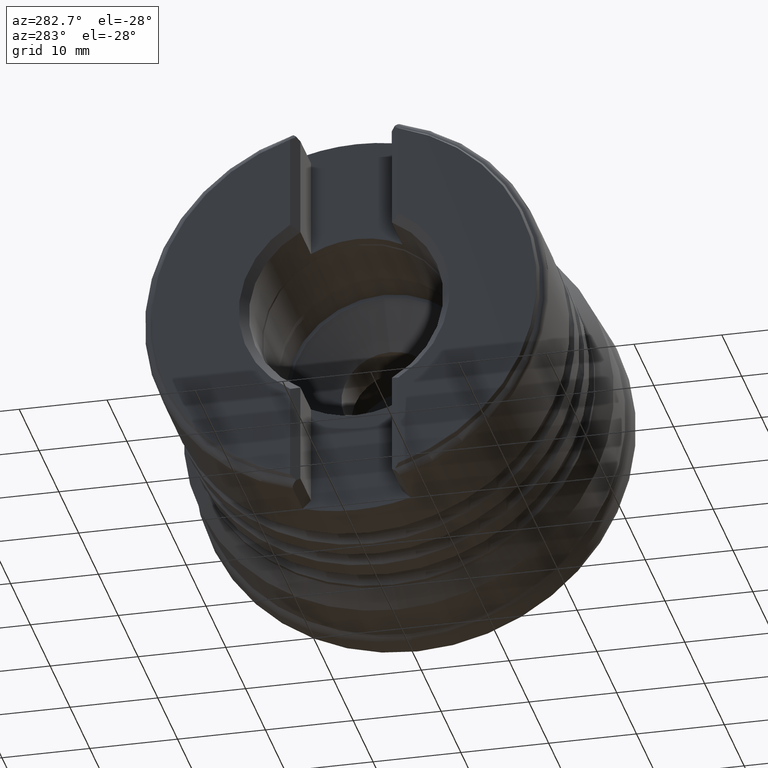
[diagram: clean part render]
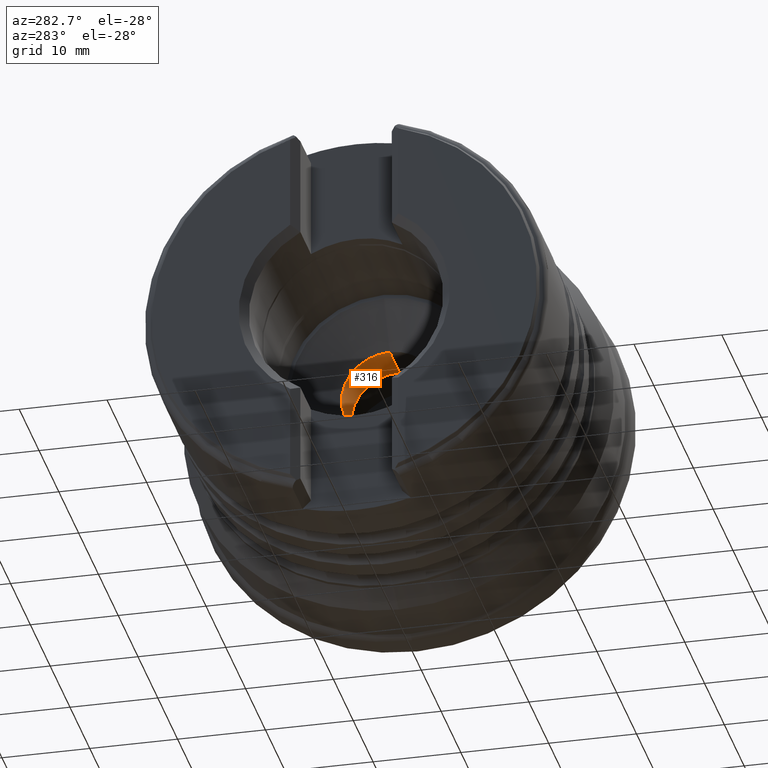
[diagram: same view with one face highlighted and labeled with its STEP entity id]
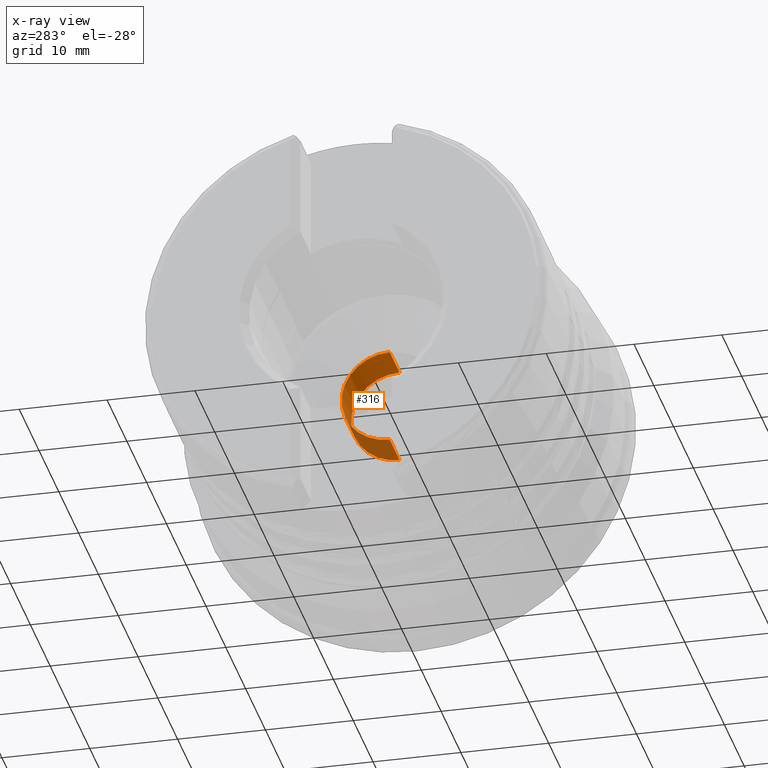
[diagram: x-ray of the same camera — body ghosted, the highlighted face saturated]
A machine part, auxiliary view. The second image highlights one B-rep face of the part: STEP entity #316.
The next image is the same camera in x-ray: the body ghosted, the highlighted face saturated — about 33% of this face is hidden behind the body in this view.
In plain terms, the highlighted cylindrical surface (partial cylindrical patch) has radius 5.5 mm, axis along (1, -0, -0).
Its self-contained STEP definition (entity closure, byte-faithful):
#7 = EDGE_CURVE ( 'NONE', #1958, #1961, #1165, .T. ) ;
#12 = EDGE_CURVE ( 'NONE', #1961, #2547, #1543, .T. ) ;
#57 = AXIS2_PLACEMENT_3D ( 'NONE', #1775, #1858, #1866 ) ;
#59 = EDGE_CURVE ( 'NONE', #1958, #402, #1262, .T. ) ;
#89 = EDGE_CURVE ( 'NONE', #402, #2547, #1605, .T. ) ;
#130 = AXIS2_PLACEMENT_3D ( 'NONE', #2500, #2501, #2455 ) ;
#216 = AXIS2_PLACEMENT_3D ( 'NONE', #907, #767, #432 ) ;
#316 = ADVANCED_FACE ( 'NONE', ( #2141 ), #2108, .F. ) ;
#402 = VERTEX_POINT ( 'NONE', #485 ) ;
#432 = DIRECTION ( 'NONE',  ( 0.0000000000000000000, 0.0000000000000000000, -1.000000000000000000 ) ) ;
#485 = CARTESIAN_POINT ( 'NONE',  ( -11.00000000000000200, 0.0000000000000000000, -5.499999999999998200 ) ) ;
#569 = CARTESIAN_POINT ( 'NONE',  ( -15.94999999999999900, 6.735557395310440100E-016, 5.499999999999998200 ) ) ;
#767 = DIRECTION ( 'NONE',  ( 1.000000000000000000, -0.0000000000000000000, -0.0000000000000000000 ) ) ;
#907 = CARTESIAN_POINT ( 'NONE',  ( 0.0000000000000000000, 0.0000000000000000000, 0.0000000000000000000 ) ) ;
#924 = CARTESIAN_POINT ( 'NONE',  ( -15.94999999999999900, 0.0000000000000000000, -5.499999999999998200 ) ) ;
#1009 = CARTESIAN_POINT ( 'NONE',  ( -11.00000000000000200, 6.735557395310440100E-016, 5.499999999999998200 ) ) ;
#1134 = VECTOR ( 'NONE', #1834, 1000.000000000000000 ) ;
#1165 = CIRCLE ( 'NONE', #57, 5.499999999999998200 ) ;
#1262 = LINE ( 'NONE', #1873, #1392 ) ;
#1392 = VECTOR ( 'NONE', #1857, 1000.000000000000000 ) ;
#1423 = EDGE_LOOP ( 'NONE', ( #1703, #1710, #1760, #1458 ) ) ;
#1458 = ORIENTED_EDGE ( 'NONE', *, *, #89, .T. ) ;
#1543 = LINE ( 'NONE', #1829, #1134 ) ;
#1605 = CIRCLE ( 'NONE', #130, 5.499999999999998200 ) ;
#1703 = ORIENTED_EDGE ( 'NONE', *, *, #12, .F. ) ;
#1710 = ORIENTED_EDGE ( 'NONE', *, *, #7, .F. ) ;
#1760 = ORIENTED_EDGE ( 'NONE', *, *, #59, .T. ) ;
#1775 = CARTESIAN_POINT ( 'NONE',  ( -15.94999999999999900, 0.0000000000000000000, 0.0000000000000000000 ) ) ;
#1829 = CARTESIAN_POINT ( 'NONE',  ( 0.0000000000000000000, 6.735557395310440100E-016, 5.499999999999998200 ) ) ;
#1834 = DIRECTION ( 'NONE',  ( 1.000000000000000000, -0.0000000000000000000, -0.0000000000000000000 ) ) ;
#1857 = DIRECTION ( 'NONE',  ( 1.000000000000000000, -0.0000000000000000000, -0.0000000000000000000 ) ) ;
#1858 = DIRECTION ( 'NONE',  ( 1.000000000000000000, -0.0000000000000000000, -0.0000000000000000000 ) ) ;
#1866 = DIRECTION ( 'NONE',  ( 0.0000000000000000000, 0.0000000000000000000, -1.000000000000000000 ) ) ;
#1873 = CARTESIAN_POINT ( 'NONE',  ( 0.0000000000000000000, 0.0000000000000000000, -5.499999999999998200 ) ) ;
#1958 = VERTEX_POINT ( 'NONE', #924 ) ;
#1961 = VERTEX_POINT ( 'NONE', #569 ) ;
#2108 = CYLINDRICAL_SURFACE ( 'NONE', #216, 5.499999999999998200 ) ;
#2141 = FACE_OUTER_BOUND ( 'NONE', #1423, .T. ) ;
#2455 = DIRECTION ( 'NONE',  ( 0.0000000000000000000, 0.0000000000000000000, -1.000000000000000000 ) ) ;
#2500 = CARTESIAN_POINT ( 'NONE',  ( -11.00000000000000200, 0.0000000000000000000, 0.0000000000000000000 ) ) ;
#2501 = DIRECTION ( 'NONE',  ( 1.000000000000000000, -0.0000000000000000000, -0.0000000000000000000 ) ) ;
#2547 = VERTEX_POINT ( 'NONE', #1009 ) ;